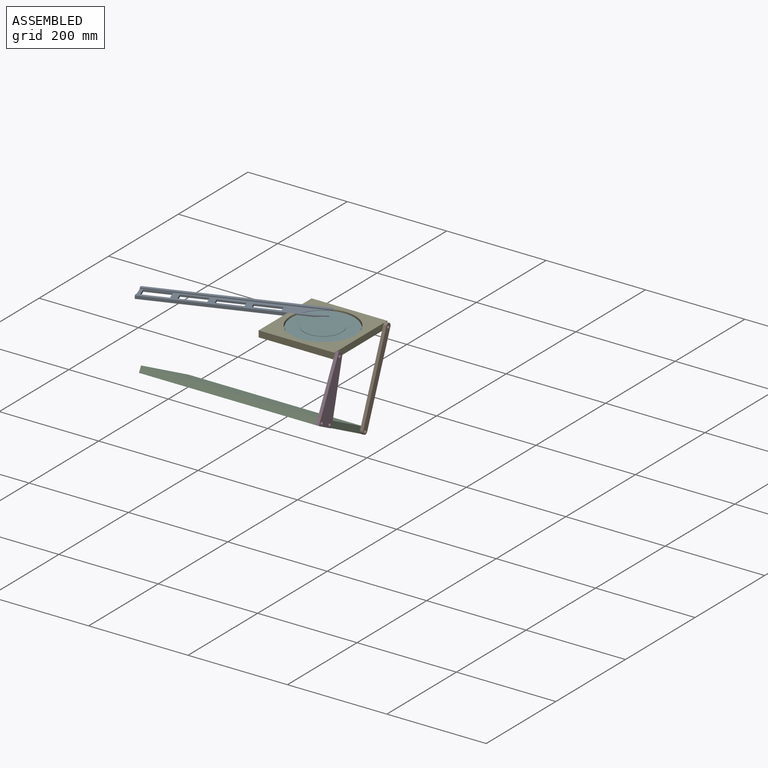
[diagram: assembled view]
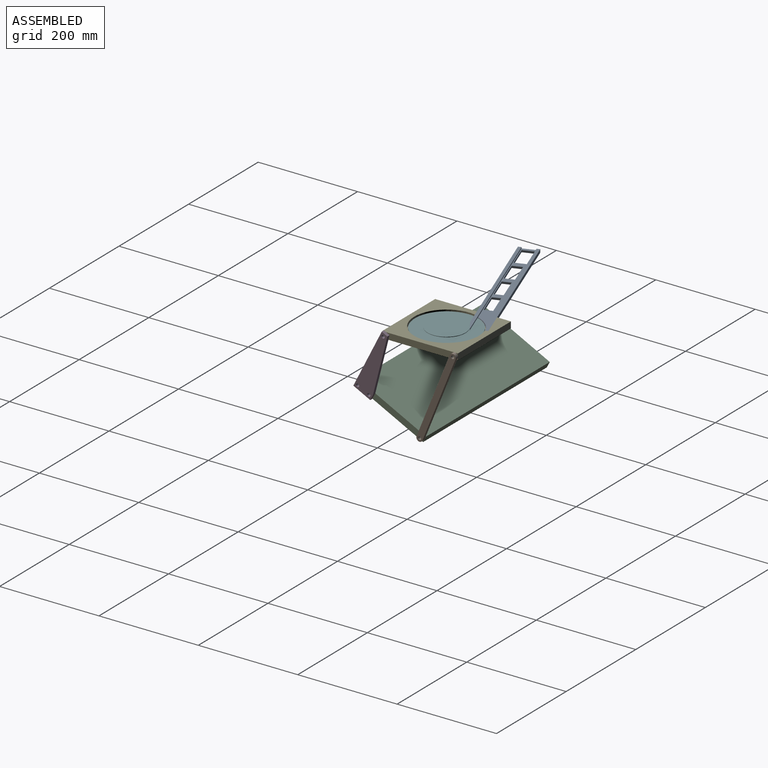
[diagram: assembled view, second angle]
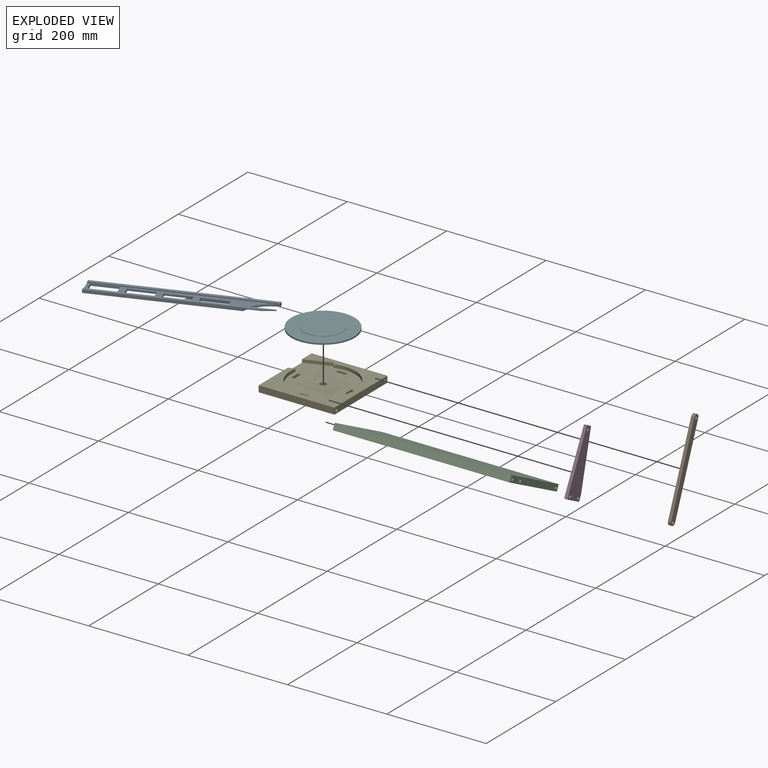
[diagram: exploded view]
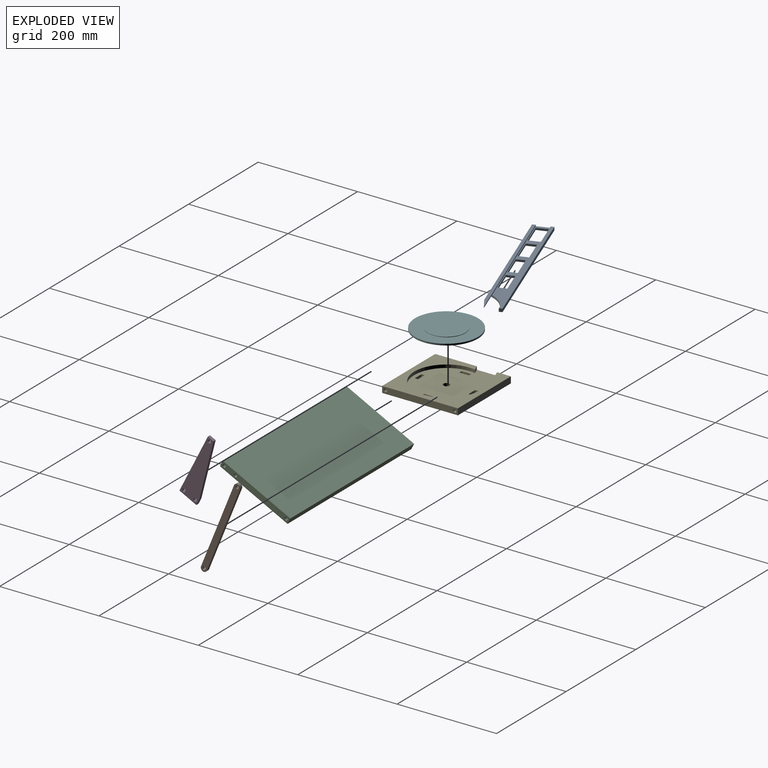
[diagram: exploded view, second angle]
ASSEMBLY  parts=6 mates=13
PART A: 29 faces, bbox 330.2x38.1x6.4 mm
  f0: plane 55.9x6.35mm, normal (0,0,-1), area 261.2mm2, adj f7,f9,f27,f28
  f1: plane 6.35x6.35mm, normal (1,0,0), area 40.3mm2, adj f2,f5,f8,f10,f27
  f2: plane 330.2x38.1mm, normal (0,0,-1), area 7493.6mm2, adj f1,f5,f6,f7,f11,f12,f13,f14
  f3: plane 330.2x25.4mm, normal (0,0,1), area 3641.9mm2, adj f6,f9,f10,f11,f12,f13,f14,f15
  f4: plane 330.2x6.35mm, normal (0,0,1), area 2016.1mm2, adj f6,f7,f9,f28
  f5: plane 330.2x6.35mm, normal (0,1,0), area 2096.8mm2, adj f1,f2,f6,f8
  f6: plane 38.1x6.35mm, normal (-1,0,0), area 181.5mm2, adj f2,f3,f4,f5,f7,f8,f9,f10
  f7: plane 304.8x6.35mm, normal (0,-1,0), area 1814.4mm2, adj f0,f2,f4,f6,f27,f28
  f8: plane 330.2x6.35mm, normal (0,0,1), area 2096.8mm2, adj f1,f5,f6,f10
  f9: plane 330.2x2.38mm, normal (0,1,0), area 786.3mm2, adj f0,f3,f4,f6,f28
  f10: plane 330.2x2.38mm, normal (0,-1,0), area 786.3mm2, adj f1,f3,f6,f8
  f11: plane 50.8x3.97mm, normal (0,1,0), area 201.6mm2, adj f2,f3,f12,f13
  f12: plane 17.07x3.97mm, normal (1,0,0), area 67.7mm2, adj f2,f3,f11,f14
  f13: plane 17.07x3.97mm, normal (-1,0,0), area 67.7mm2, adj f2,f3,f11,f14
  f14: plane 50.8x3.97mm, normal (0,-1,0), area 201.6mm2, adj f2,f3,f12,f13
  f15: plane 50.8x3.97mm, normal (0,-1,0), area 201.6mm2, adj f2,f3,f16,f17
  f16: plane 22.62x3.97mm, normal (-1,0,0), area 89.8mm2, adj f2,f3,f15,f18
  f17: plane 22.62x3.97mm, normal (1,0,0), area 89.8mm2, adj f2,f3,f15,f18
  f18: plane 50.8x3.97mm, normal (0,1,0), area 201.6mm2, adj f2,f3,f16,f17
  f19: plane 50.8x3.97mm, normal (0,1,0), area 201.6mm2, adj f2,f3,f20,f21
  f20: plane 19.45x3.97mm, normal (1,0,0), area 77.2mm2, adj f2,f3,f19,f22
  f21: plane 19.45x3.97mm, normal (-1,0,0), area 77.2mm2, adj f2,f3,f19,f22
  f22: plane 50.8x3.97mm, normal (0,-1,0), area 201.6mm2, adj f2,f3,f20,f21
  f23: plane 16.27x3.97mm, normal (-1,0,0), area 64.6mm2, adj f2,f3,f24,f25
  f24: plane 50.8x3.97mm, normal (0,1,0), area 201.6mm2, adj f2,f3,f23,f26
  f25: plane 50.8x3.97mm, normal (0,-1,0), area 201.6mm2, adj f2,f3,f23,f26
  f26: plane 16.27x3.97mm, normal (1,0,0), area 64.6mm2, adj f2,f3,f24,f25
  f27: cylinder r=65.09mm len=55.9mm, axis (0,0,1), area 266.9mm2, adj f0,f1,f2,f3,f7
  f28: plane 25.4x6.35mm, normal (0.24,-0.97,0), area 62.3mm2, adj f0,f4,f7,f9
PART B: 8 faces, bbox 6.4x12.7x190.5 mm
  f0: cylinder r=6.35mm len=12.7mm, axis (-1,0,0), area 126.7mm2, adj f1,f5,f6,f7
  f1: plane 177.8x6.35mm, normal (0,-1,0), area 1129mm2, adj f0,f2,f6,f7
  f2: cylinder r=6.35mm len=12.7mm, axis (-1,0,0), area 126.7mm2, adj f1,f5,f6,f7
  f3: cylinder r=3.17mm len=6.35mm, axis (-1,0,0), area 126.7mm2, adj f6,f7
  f4: cylinder r=3.17mm len=6.35mm, axis (-1,0,0), area 126.7mm2, adj f6,f7
  f5: plane 177.8x6.35mm, normal (0,1,0), area 1129mm2, adj f0,f2,f6,f7
  f6: plane 190.5x12.7mm, normal (1,0,0), area 2321.4mm2, adj f0,f1,f2,f3,f4,f5
  f7: plane 190.5x12.7mm, normal (-1,0,0), area 2321.4mm2, adj f0,f1,f2,f3,f4,f5
PART C: 12 faces, bbox 355.6x152.4x12.7 mm
  f0: plane 152.4x12.7mm, normal (-1,0,0), area 1935.5mm2, adj f1,f3,f4,f5
  f1: plane 355.6x12.7mm, normal (0,-1,0), area 4516.1mm2, adj f0,f2,f4,f5
  f2: plane 152.4x12.7mm, normal (1,0,0), area 1840.5mm2, adj f1,f3,f4,f5,f6,f8,f10
  f3: plane 355.6x12.7mm, normal (0,1,0), area 4516.1mm2, adj f0,f2,f4,f5
  f4: plane 355.6x152.4mm, normal (0,0,1), area 54193.4mm2, adj f0,f1,f2,f3
  f5: plane 355.6x152.4mm, normal (0,0,-1), area 54193.4mm2, adj f0,f1,f2,f3
  f6: cylinder r=3.17mm len=25.4mm, axis (1,0,0), area 506.7mm2, adj f2,f7
  f7: plane 6.35x6.35mm, normal (1,0,0), area 31.7mm2, adj f6
  f8: cylinder r=3.17mm len=25.4mm, axis (1,0,0), area 506.7mm2, adj f2,f9
  f9: plane 6.35x6.35mm, normal (1,0,0), area 31.7mm2, adj f8
  f10: cylinder r=3.17mm len=25.4mm, axis (1,0,0), area 506.7mm2, adj f2,f11
  f11: plane 6.35x6.35mm, normal (1,0,0), area 31.7mm2, adj f10
PART D: 10 faces, bbox 6.4x38.1x127 mm
  f0: plane 127x6.35mm, normal (0,-1,0), area 806.5mm2, adj f1,f7,f8,f9
  f1: plane 38.1x6.35mm, normal (0,0,-1), area 241.9mm2, adj f0,f2,f8,f9
  f2: plane 12.7x6.35mm, normal (0,1,0), area 80.6mm2, adj f1,f3,f8,f9
  f3: plane 114.3x25.4mm, normal (0,0.98,0.22), area 743.5mm2, adj f2,f7,f8,f9
  f4: cylinder r=3.17mm len=6.35mm, axis (-1,0,0), area 126.7mm2, adj f8,f9
  f5: cylinder r=3.17mm len=6.35mm, axis (-1,0,0), area 126.7mm2, adj f8,f9
  f6: cylinder r=3.17mm len=6.35mm, axis (-1,0,0), area 126.7mm2, adj f8,f9
  f7: plane 12.7x6.35mm, normal (0,0,1), area 80.6mm2, adj f0,f3,f8,f9
  f8: plane 127x38.1mm, normal (1,0,0), area 3292.1mm2, adj f0,f1,f2,f3,f4,f5,f6,f7
  f9: plane 127x38.1mm, normal (-1,0,0), area 3292.1mm2, adj f0,f1,f2,f3,f4,f5,f6,f7
PART E: 30 faces, bbox 152.4x152.4x12.7 mm
  f0: plane 152.4x12.7mm, normal (-1,0,0), area 1614.7mm2, adj f2,f4,f5,f6,f8,f9,f11,f28
  f1: cylinder r=6.35mm len=12.7mm, axis (0,0,-1), area 253.4mm2, adj f6,f11
  f2: plane 152.4x12.7mm, normal (0,-1,0), area 1935.5mm2, adj f0,f3,f5,f6
  f3: plane 152.4x12.7mm, normal (1,0,0), area 1872.1mm2, adj f2,f4,f5,f6,f28,f29
  f4: plane 152.4x12.7mm, normal (0,1,0), area 1935.5mm2, adj f0,f3,f5,f6
  f5: plane 152.4x152.4mm, normal (0,0,1), area 8810.1mm2, adj f0,f2,f3,f4,f7,f8,f9,f10
  f6: plane 152.4x152.4mm, normal (0,0,-1), area 22615.2mm2, adj f0,f1,f2,f3,f4,f12,f13,f14
  f7: plane 6.35x5.97mm, normal (-0.94,-0.34,0), area 39.8mm2, adj f5,f8,f10,f11,f28
  f8: plane 51.77x18.84mm, normal (0.34,-0.94,0), area 348.3mm2, adj f0,f5,f7,f11,f28
  f9: plane 12.27x6.35mm, normal (-0.34,0.94,0), area 82.9mm2, adj f0,f5,f10,f11
  f10: cylinder r=65.09mm len=130.18mm, axis (0,0,1), area 2169.9mm2, adj f5,f7,f9,f11
  f11: plane 141.29x131.76mm, normal (0,0,1), area 13804.8mm2, adj f0,f1,f7,f8,f9,f10,f12,f13
  f12: plane 19.05x6.35mm, normal (-1,0,0), area 121mm2, adj f6,f11,f13,f14
  f13: plane 6.35x6.35mm, normal (0,1,0), area 40.3mm2, adj f6,f11,f12,f15
  f14: plane 6.35x6.35mm, normal (0,-1,0), area 40.3mm2, adj f6,f11,f12,f15
  f15: plane 19.05x6.35mm, normal (1,0,0), area 121mm2, adj f6,f11,f13,f14
  f16: plane 6.35x6.35mm, normal (-1,0,0), area 40.3mm2, adj f6,f11,f17,f18
  f17: plane 19.05x6.35mm, normal (0,1,0), area 121mm2, adj f6,f11,f16,f19
  f18: plane 19.05x6.35mm, normal (0,-1,0), area 121mm2, adj f6,f11,f16,f19
  f19: plane 6.35x6.35mm, normal (1,0,0), area 40.3mm2, adj f6,f11,f17,f18
  f20: plane 19.05x6.35mm, normal (1,0,0), area 121mm2, adj f6,f11,f21,f22
  f21: plane 6.35x6.35mm, normal (0,-1,0), area 40.3mm2, adj f6,f11,f20,f23
  f22: plane 6.35x6.35mm, normal (0,1,0), area 40.3mm2, adj f6,f11,f20,f23
  f23: plane 19.05x6.35mm, normal (-1,0,0), area 121mm2, adj f6,f11,f21,f22
  f24: plane 6.35x6.35mm, normal (1,0,0), area 40.3mm2, adj f6,f11,f25,f26
  f25: plane 19.05x6.35mm, normal (0,-1,0), area 121mm2, adj f6,f11,f24,f27
  f26: plane 19.05x6.35mm, normal (0,1,0), area 121mm2, adj f6,f11,f24,f27
  f27: plane 6.35x6.35mm, normal (-1,0,0), area 40.3mm2, adj f6,f11,f25,f26
  f28: cylinder r=3.17mm len=152.4mm, axis (1,0,0), area 3038.6mm2, adj f0,f3,f7,f8,f11
  f29: cylinder r=3.17mm len=152.4mm, axis (1,0,0), area 3040.2mm2, adj f0,f3
PART F: 9 faces, bbox 127x127x17.5 mm
  f0: plane 9.53x9.53mm, normal (0,0,-1), area 71.3mm2, adj f8
  f1: plane 76.2x76.2mm, normal (0,0,1), area 4560.4mm2, adj f2
  f2: cylinder r=38.1mm len=76.2mm, axis (0,0,-1), area 190mm2, adj f1,f3
  f3: plane 127x127mm, normal (0,0,1), area 8107.3mm2, adj f2,f4
  f4: cylinder r=63.5mm len=127mm, axis (0,0,-1), area 1266.8mm2, adj f3,f5
  f5: plane 127x127mm, normal (0,0,-1), area 12541mm2, adj f4,f6
  f6: cylinder r=6.35mm len=12.7mm, axis (0,0,-1), area 31.7mm2, adj f5,f7
  f7: plane 12.7x12.7mm, normal (0,0,-1), area 55.4mm2, adj f6,f8
  f8: cylinder r=4.76mm len=12.7mm, axis (0,0,-1), area 380mm2, adj f0,f7
PLACE A rot(axis=(0,0,1),20deg) t=(-259.59,6.08,12.77)mm
PLACE B rot(axis=(-1,0,0),21.9deg) t=(151.33,55.35,-152.17)mm
PLACE C rot(axis=(-1,0,0),26.7deg) t=(-204.27,-77.93,-92.11)mm fixed
PLACE D rot(axis=(-1,0,0),26.7deg) t=(151.33,-77.93,-92.11)mm
PLACE E t=(-1.07,-24.31,6.42)mm
PLACE F t=(75.13,51.89,0.07)mm
MATE planar E.f29 <-> D.f6  axis (1,0,0) through (151.33,-17.96,12.77)mm
MATE planar C.f2 <-> D.f9  axis (1,0,0) through (151.33,-77.93,-92.11)mm
MATE planar E.f28 <-> B.f0  axis (1,0,0) through (151.33,121.74,12.77)mm
MATE cylindrical E.f1 <-> F.f2  axis (0,0,1) through (75.13,51.89,12.77)mm
MATE cylindrical C.f10 <-> B.f3  axis (1,0,0) through (151.33,55.35,-152.17)mm
MATE cylindrical C.f8 <-> D.f4  axis (1,0,0) through (151.33,-69.4,-89.3)mm
MATE planar E.f11 <-> A.f2  axis (0,0,1) through (65.6,109.04,12.77)mm
MATE planar E.f1 <-> F.f2  axis (0,0,1) through (75.13,51.89,12.77)mm
MATE planar E.f8 <-> A.f5  axis (0.34,-0.94,0) through (24.19,109.37,12.77)mm
MATE planar E.f7 <-> A.f1  axis (-0.94,-0.34,0) through (51.86,115.81,12.77)mm
MATE cylindrical E.f29 <-> D.f6  axis (1,0,0) through (151.33,-17.96,12.77)mm
MATE cylindrical C.f6 <-> D.f5  axis (1,0,0) through (151.33,-46.72,-100.73)mm
MATE cylindrical B.f4 <-> E.f28  axis (-1,0,0) through (151.33,121.74,12.77)mm
